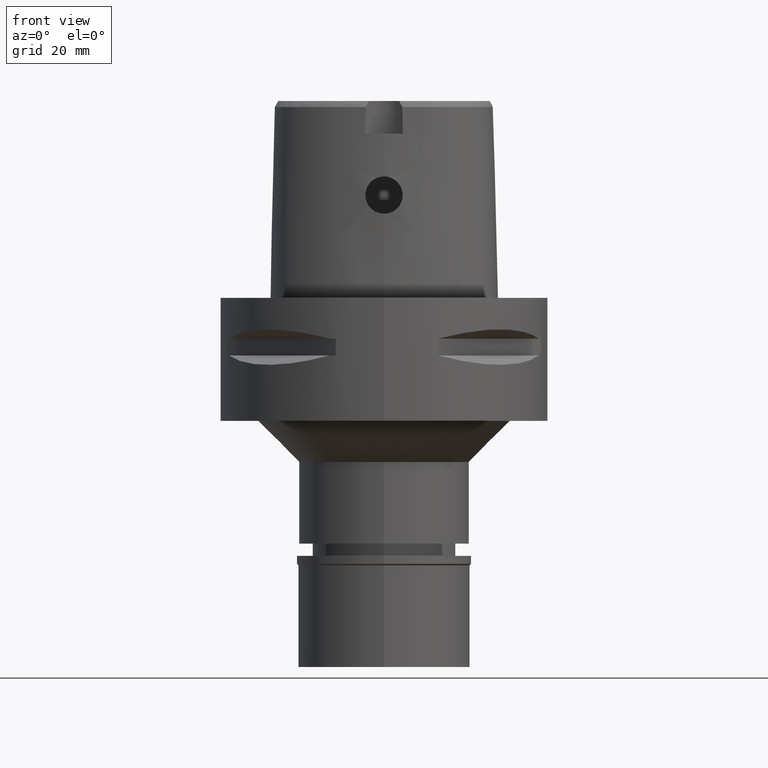
[diagram: clean part render]
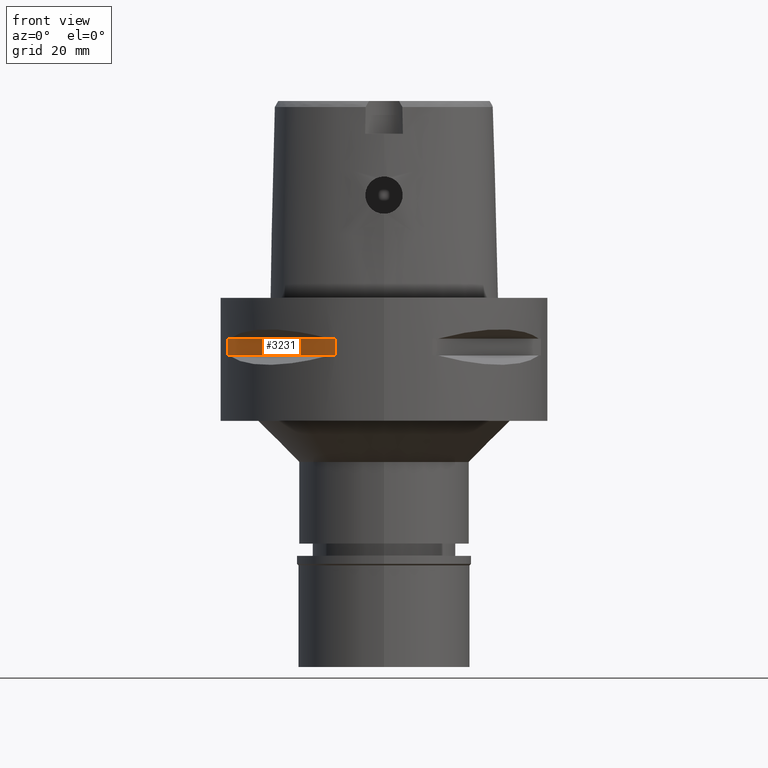
[diagram: same view with one face highlighted and labeled with its STEP entity id]
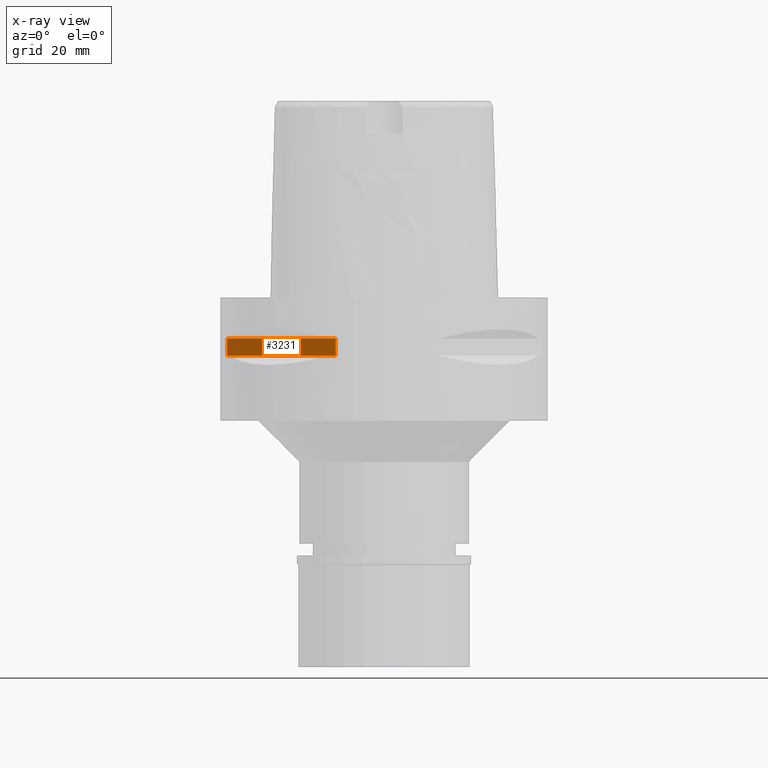
[diagram: x-ray of the same camera — body ghosted, the highlighted face saturated]
A machine part, front view. The second image highlights one B-rep face of the part: STEP entity #3231.
The next image is the same camera in x-ray: the body ghosted, the highlighted face saturated — about 0% of this face is hidden behind the body in this view.
In plain terms, the highlighted planar face has unit normal (0.7071, 0.7071, 0).
Its self-contained STEP definition (entity closure, byte-faithful):
#32 = CARTESIAN_POINT ( 'NONE',  ( -38.23211342708000160, -11.76033600280999991, -9.950000000000001066 ) ) ;
#104 = FACE_OUTER_BOUND ( 'NONE', #459, .T. ) ;
#267 = CARTESIAN_POINT ( 'NONE',  ( -11.76033600280999991, -38.23211342708000160, -14.05000000000000071 ) ) ;
#459 = EDGE_LOOP ( 'NONE', ( #3696, #3781, #1659, #1430 ) ) ;
#683 = EDGE_CURVE ( 'NONE', #4591, #4749, #2571, .T. ) ;
#878 = CARTESIAN_POINT ( 'NONE',  ( -38.23211342708000160, -11.76033600280999991, -14.05000000000000071 ) ) ;
#1149 = VERTEX_POINT ( 'NONE', #3754 ) ;
#1153 = VERTEX_POINT ( 'NONE', #267 ) ;
#1186 = EDGE_CURVE ( 'NONE', #4591, #1149, #4730, .T. ) ;
#1430 = ORIENTED_EDGE ( 'NONE', *, *, #4390, .T. ) ;
#1659 = ORIENTED_EDGE ( 'NONE', *, *, #3317, .T. ) ;
#2283 = CARTESIAN_POINT ( 'NONE',  ( -11.76033600280999991, -38.23211342708000160, -14.05000000000000071 ) ) ;
#2571 = LINE ( 'NONE', #3286, #4642 ) ;
#2620 = VECTOR ( 'NONE', #3399, 1000.000000000000000 ) ;
#2660 = DIRECTION ( 'NONE',  ( 0.7071067811865475727, 0.7071067811865475727, 0.0000000000000000000 ) ) ;
#2707 = LINE ( 'NONE', #4624, #3488 ) ;
#3002 = DIRECTION ( 'NONE',  ( 0.0000000000000000000, 0.0000000000000000000, -1.000000000000000000 ) ) ;
#3063 = DIRECTION ( 'NONE',  ( 0.7071067811865474617, -0.7071067811865474617, 0.0000000000000000000 ) ) ;
#3086 = PLANE ( 'NONE',  #4315 ) ;
#3115 = DIRECTION ( 'NONE',  ( 0.7071067811865474617, -0.7071067811865474617, 0.0000000000000000000 ) ) ;
#3231 = ADVANCED_FACE ( 'NONE', ( #104 ), #3086, .F. ) ;
#3286 = CARTESIAN_POINT ( 'NONE',  ( -38.23211342708000160, -11.76033600280999991, -9.950000000000001066 ) ) ;
#3317 = EDGE_CURVE ( 'NONE', #4749, #1153, #2707, .T. ) ;
#3399 = DIRECTION ( 'NONE',  ( 0.0000000000000000000, 0.0000000000000000000, 1.000000000000000000 ) ) ;
#3488 = VECTOR ( 'NONE', #3063, 1000.000000000000114 ) ;
#3583 = CARTESIAN_POINT ( 'NONE',  ( -38.23211342708000160, -11.76033600280999991, -9.950000000000001066 ) ) ;
#3696 = ORIENTED_EDGE ( 'NONE', *, *, #1186, .F. ) ;
#3754 = CARTESIAN_POINT ( 'NONE',  ( -11.76033600280999991, -38.23211342708000160, -9.950000000000001066 ) ) ;
#3781 = ORIENTED_EDGE ( 'NONE', *, *, #683, .T. ) ;
#4177 = LINE ( 'NONE', #2283, #2620 ) ;
#4315 = AXIS2_PLACEMENT_3D ( 'NONE', #4650, #2660, #4387 ) ;
#4387 = DIRECTION ( 'NONE',  ( 0.0000000000000000000, 0.0000000000000000000, -1.000000000000000000 ) ) ;
#4390 = EDGE_CURVE ( 'NONE', #1153, #1149, #4177, .T. ) ;
#4563 = VECTOR ( 'NONE', #3115, 1000.000000000000114 ) ;
#4591 = VERTEX_POINT ( 'NONE', #3583 ) ;
#4624 = CARTESIAN_POINT ( 'NONE',  ( -38.23211342708000160, -11.76033600280999991, -14.05000000000000071 ) ) ;
#4642 = VECTOR ( 'NONE', #3002, 1000.000000000000000 ) ;
#4650 = CARTESIAN_POINT ( 'NONE',  ( -7.318555185280999353, -42.67389424461000402, -9.950000000000001066 ) ) ;
#4730 = LINE ( 'NONE', #32, #4563 ) ;
#4749 = VERTEX_POINT ( 'NONE', #878 ) ;